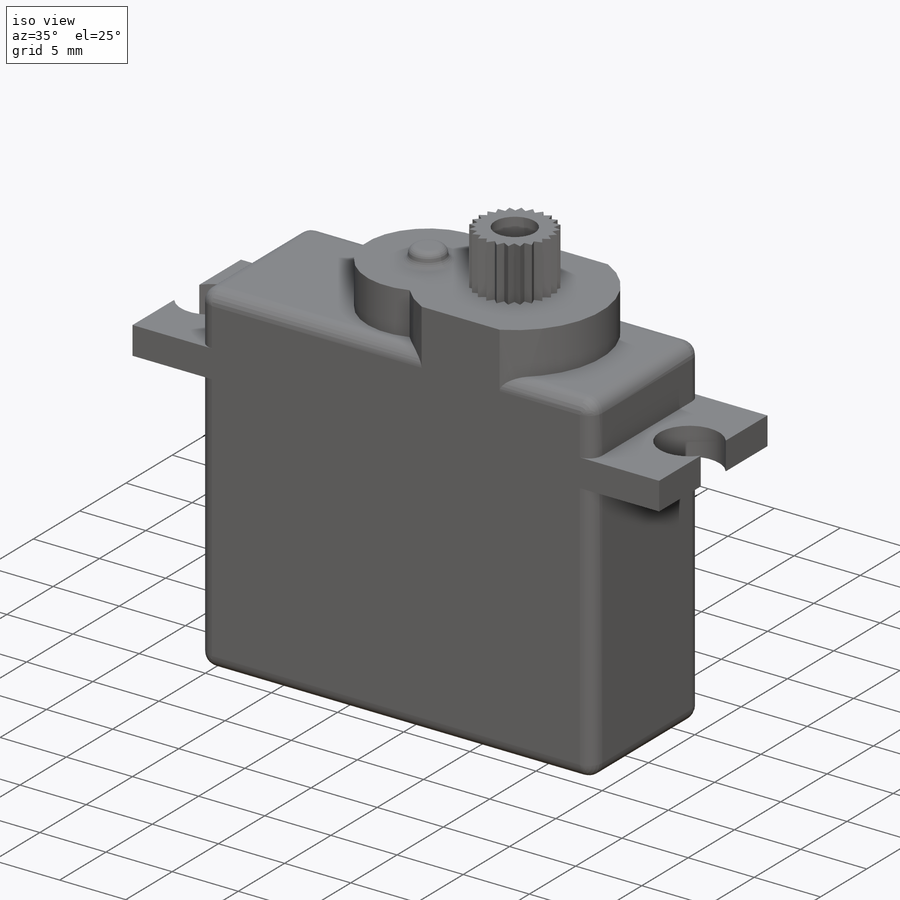
[diagram: iso view]
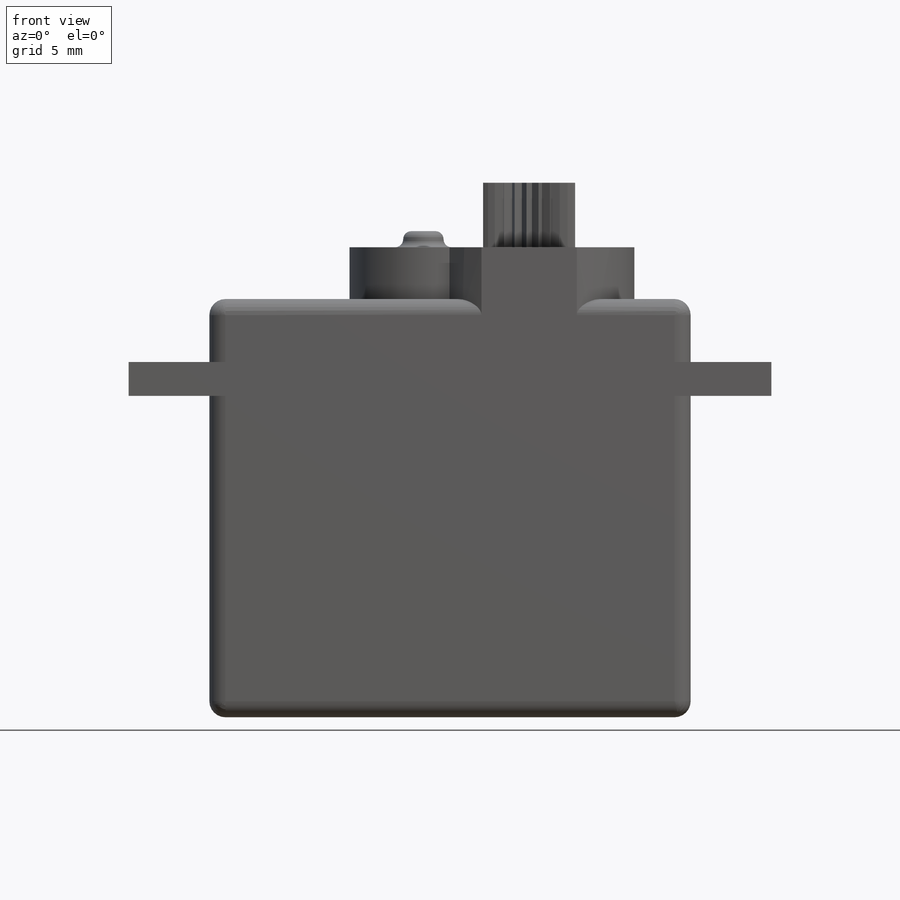
[diagram: front view]
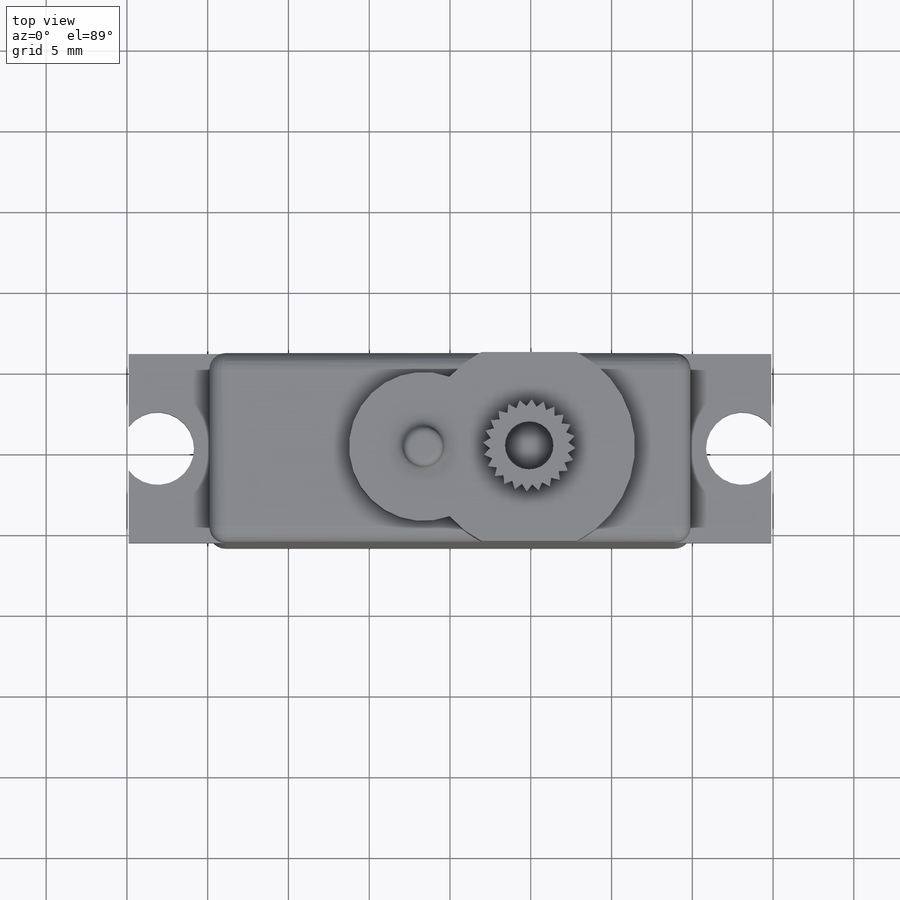
[diagram: top view]
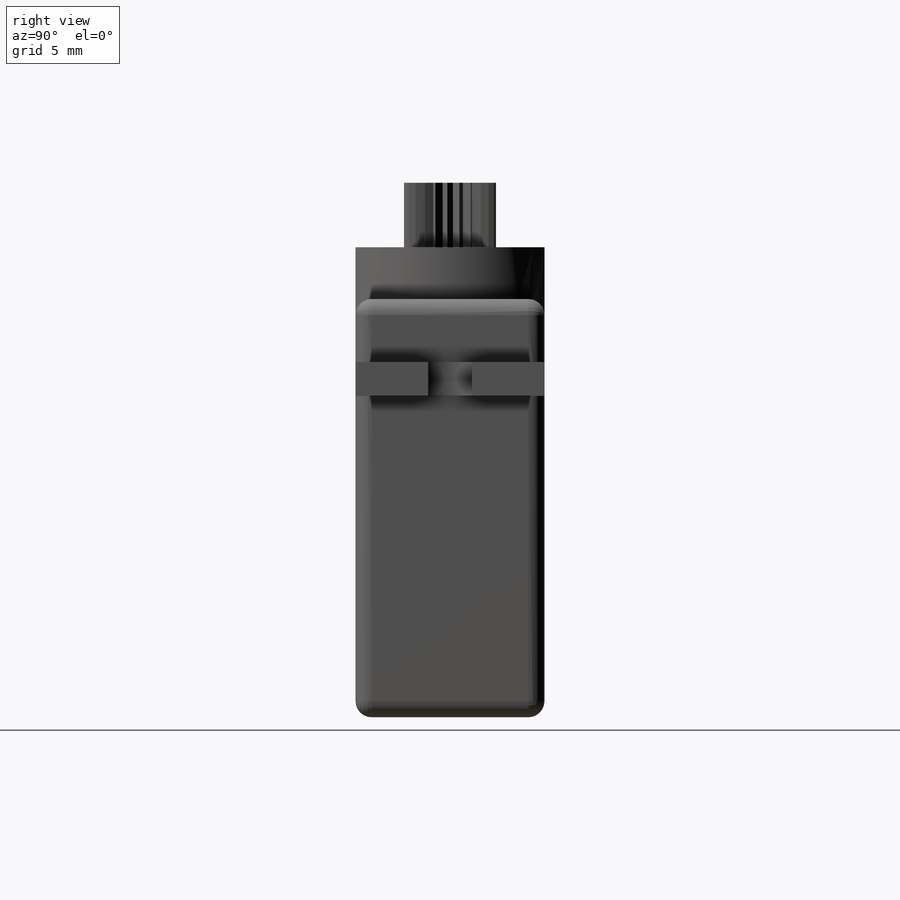
[diagram: right view]
SOLIDWORKS PART (.sldprt)
format: sldprt  version: not decoded by parser v0  size: 437,760 bytes
history: native  units: mm
features: sketch x6, extrude x4, cut_extrude x2, fillet x2, material x1, pattern_circular x1 (+11 scaffold rows collapsed)
feature tree (27):
  scaffold x11  (default folders/planes/origin — collapsed)
  material  "Material <not specified>"
  sketch  "Sketch1"  dims[D1=25.9mm D2=29.8mm D3=2.1mm D4=19.9mm D5=5.0mm]
  extrude  "Extrude1"  Depth=11.7mm
  sketch  "Sketch2"  dims[D2=4.5mm D1=36.2mm]
  cut_extrude  "Extrude2"  [1 undecoded]
  sketch  "Sketch3"  dims[D3=9.2mm D1=10.0mm D2=17.7mm]
  extrude  "Extrude3"  Depth=3.2mm
  sketch  "Sketch6"  dims[D1=2.5mm]
  extrude  "Extrude6"  Depth=1mm
  sketch  "Sketch4"  dims[D1=5.7mm D2=3.0mm]
  extrude  "Extrude4"  Depth=4mm
  sketch  "Sketch5"  dims[c1.D1=~2.709777mm c2.D1=15.0deg]
  cut_extrude  "Extrude5"  [1 undecoded]
  pattern_circular  "CirPattern1"  Count=24 Angle=15deg
  fillet  "Fillet1"  Radius=1mm
  fillet  "Fillet2"  Radius=0.5mm
decode coverage: 13 of 15 modeling features carry decoded parameters
note: ~ marks probable driven/reference dimensions
note: 2 parameter values undecoded
note: suppression state not decoded; provenance and decode notes live in map.json
